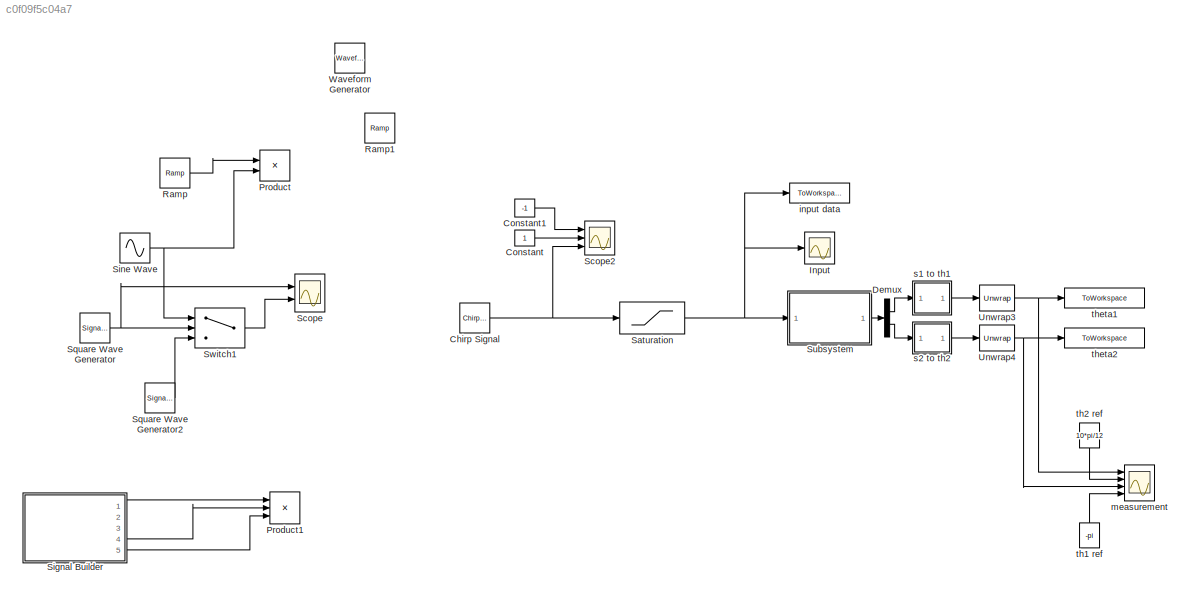
MODEL slx_c0f09f5c04a7
KIND model
CONFIG AbsTol = auto
CONFIG EnableMultiTasking = off
CONFIG FixedStep = auto
CONFIG MaxStep = auto
CONFIG MinStep = auto
CONFIG RelTol = 1e-3
CONFIG SampleTimeConstraint = Unconstrained
CONFIG SolverName = VariableStepAuto
CONFIG StartTime = 0.0
CONFIG StopTime = 3
BLOCK [Reference] Chirp Signal  REF=simulink/Sources/Chirp Signal
  Ports = [0, 1]
  SourceBlock = simulink/Sources/Chirp Signal
  SourceProductBaseCode = SL
  SourceType = chirp
BLOCK [Constant] Constant
BLOCK [Constant] Constant1
  Value = -1
BLOCK [Demux] Demux
  Outputs = 2
  Ports = [1, 2]
BLOCK [Scope] Input
  Floating = off
  NumInputPorts = 1
  Ports = [1]
  ScopeSpecificationString = Simulink.scopes.TimeScopeBlockCfg('CurrentConfiguration', extmgr.ConfigurationSet(extmgr.Configuration('Core','General UI',true),extmgr.Configuration('Core','Source UI',true),extmgr.Configuration('Sources','WiredSimulink',true,'DataLoggingVariableName','ScopeData3'),extmgr.Configuration('Visuals','Time Domain',true,'SerializedDisplays',{struct('MinYLimReal','-1.04705','MaxYLimReal','1.22745','YLab...<+1438ch>
BLOCK [Product] Product
  Commented = on
  Ports = [2, 1]
BLOCK [Product] Product1
  Commented = on
  Inputs = 3
  Ports = [3, 1]
BLOCK [Reference] Ramp  REF=simulink/Sources/Ramp
  Commented = on
  Ports = [0, 1]
  SourceBlock = simulink/Sources/Ramp
  SourceProductBaseCode = SL
  SourceType = Ramp
BLOCK [Reference] Ramp1  REF=simulink/Sources/Ramp
  Commented = on
  Ports = [0, 1]
  SourceBlock = simulink/Sources/Ramp
  SourceProductBaseCode = SL
  SourceType = Ramp
BLOCK [Saturate] Saturation
  LowerLimit = -1
  UpperLimit = 1
BLOCK [Scope] Scope
  Commented = on
  Floating = off
  NumInputPorts = 2
  Ports = [2]
  ScopeSpecificationString = Simulink.scopes.TimeScopeBlockCfg('CurrentConfiguration', extmgr.ConfigurationSet(extmgr.Configuration('Core','General UI',true),extmgr.Configuration('Core','Source UI',true),extmgr.Configuration('Sources','WiredSimulink',true,'DataLoggingVariableName','ScopeData4'),extmgr.Configuration('Visuals','Time Domain',true,'SerializedDisplays',{struct('MinYLimReal','-1.00000','MaxYLimReal','1.00000','YLab...<+1491ch>
BLOCK [Scope] Scope2
  Floating = off
  NumInputPorts = 3
  Ports = [3]
  ScopeSpecificationString = Simulink.scopes.TimeScopeBlockCfg('CurrentConfiguration', extmgr.ConfigurationSet(extmgr.Configuration('Core','General UI',true),extmgr.Configuration('Core','Source UI',true),extmgr.Configuration('Sources','WiredSimulink',true,'DataLoggingVariableName','ScopeData2'),extmgr.Configuration('Visuals','Time Domain',true,'SerializedDisplays',{struct('MinYLimReal','-1.25','MaxYLimReal','1.25','YLabelReal...<+1556ch>
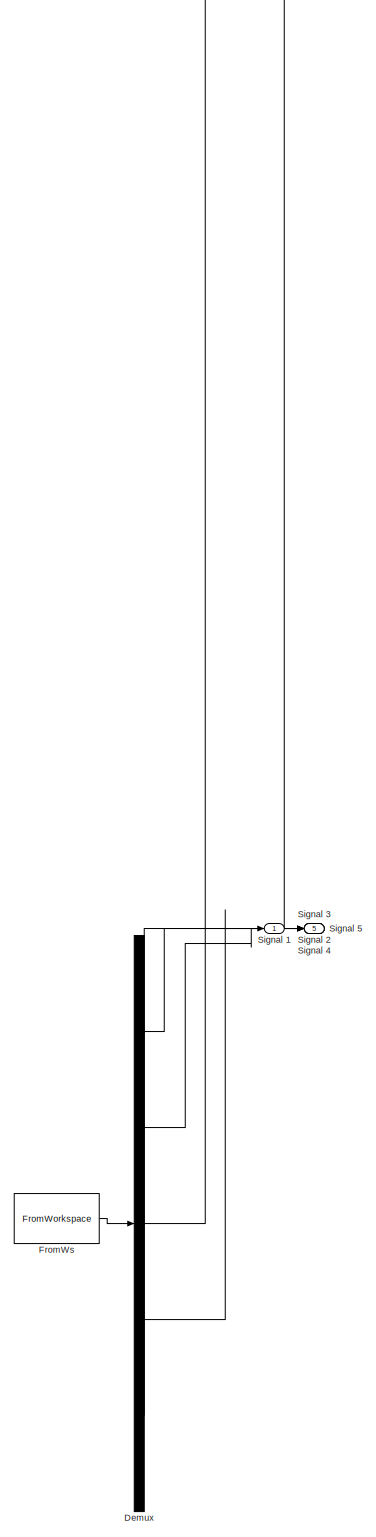
[diagram: Signal Builder - part 1/1, full width, bottom band]
BLOCK [SubSystem] Signal Builder
  ClipboardFcn = sigbuilder_block('clipboard');
  CloseFcn = sigbuilder_block('close');
  Commented = on
  ContinueFcn = sigbuilder_block('continue');
  CopyFcn = sigbuilder_block('copy');
  DeleteFcn = sigbuilder_block('delete');
  LoadFcn = sigbuilder_block('load');
  MaskHideContents = on
  ModelCloseFcn = sigbuilder_block('modelClose');
  NameChangeFcn = sigbuilder_block('namechange');
  OpenFcn = sigbuilder_block('open',[437.6 199.2 550.4 400 ]);
  PauseFcn = sigbuilder_block('pause');
  Ports = [0, 5]
  PreSaveFcn = sigbuilder_block('preSave');
  RequestExecContextInheritance = off
  StartFcn = sigbuilder_block('start');
  StopFcn = sigbuilder_block('stop');
  Tag = STV Subsys
BLOCK [Demux] Signal Builder/Demux
  DisplayOption = none
  Outputs = 5
  Ports = [1, 5]
  Tag = STV Demux
BLOCK [FromWorkspace] Signal Builder/FromWs
  Tag = STV FromWs
  VariableName = tuvar
BLOCK [Outport] Signal Builder/Signal 1
  Tag = STV Outport
BLOCK [Outport] Signal Builder/Signal 2
  Port = 2
  Tag = STV Outport
BLOCK [Outport] Signal Builder/Signal 3
  Port = 3
  Tag = STV Outport
BLOCK [Outport] Signal Builder/Signal 4
  Port = 4
  Tag = STV Outport
BLOCK [Outport] Signal Builder/Signal 5
  Port = 5
  Tag = STV Outport
BLOCK [Sin] Sine Wave
  Commented = on
  Frequency = 5
  Ports = [0, 1]
  SampleTime = 0
BLOCK [SignalGenerator] Square Wave Generator
  Commented = on
  Frequency = 2
  Ports = [0, 1]
  Units = rad/sec
  WaveForm = square
BLOCK [SignalGenerator] Square Wave Generator2
  Amplitude = 0.5
  Commented = on
  Frequency = 5
  Ports = [0, 1]
  Units = rad/sec
  WaveForm = square
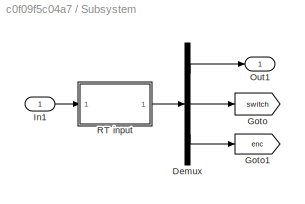
BLOCK [SubSystem] Subsystem
  Ports = [1, 1]
  RequestExecContextInheritance = off
BLOCK [Demux] Subsystem/Demux
  Outputs = [2 4 1]
  Ports = [1, 3]
BLOCK [Goto] Subsystem/Goto
  GotoTag = switch
  TagVisibility = global
BLOCK [Goto] Subsystem/Goto1
  GotoTag = enc
  TagVisibility = global
BLOCK [Inport] Subsystem/In1
BLOCK [Outport] Subsystem/Out1
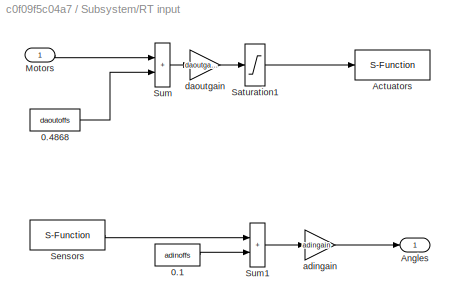
BLOCK [SubSystem] Subsystem/RT input
  Ports = [1, 1]
  RequestExecContextInheritance = off
BLOCK [Constant] Subsystem/RT input/0.1
  Value = adinoffs
BLOCK [Constant] Subsystem/RT input/0.4868
  Value = daoutoffs
BLOCK [S-Function] Subsystem/RT input/Actuators
  EnableBusSupport = off
  FunctionName = sfusbout
  Parameters = Ts, fugihandle
  Ports = [1]
  SFcnIsStateOwnerBlock = off
  SFunctionDeploymentMode = off
BLOCK [Outport] Subsystem/RT input/Angles
BLOCK [Inport] Subsystem/RT input/Motors
BLOCK [Saturate] Subsystem/RT input/Saturation1
  LowerLimit = -10
  UpperLimit = 10
BLOCK [S-Function] Subsystem/RT input/Sensors
  EnableBusSupport = off
  FunctionName = sfusbin
  Parameters = Ts, fugihandle, channels
  Ports = [0, 1]
  SFcnIsStateOwnerBlock = off
  SFunctionDeploymentMode = off
BLOCK [Sum] Subsystem/RT input/Sum
  IconShape = rectangular
  InputSameDT = on
  OutDataTypeStr = Inherit: Same as first input
  Ports = [2, 1]
  SaturateOnIntegerOverflow = on
BLOCK [Sum] Subsystem/RT input/Sum1
  IconShape = rectangular
  InputSameDT = on
  OutDataTypeStr = Inherit: Same as first input
  Ports = [2, 1]
  SaturateOnIntegerOverflow = on
BLOCK [Gain] Subsystem/RT input/adingain
  Gain = adingain
  OutDataTypeStr = Inherit: Same as input
  ParamDataTypeStr = Inherit: Same as input
  SaturateOnIntegerOverflow = on
BLOCK [Gain] Subsystem/RT input/daoutgain
  Gain = daoutgain
  OutDataTypeStr = Inherit: Same as input
  ParamDataTypeStr = Inherit: Same as input
  SaturateOnIntegerOverflow = on
BLOCK [Switch] Switch1
  Commented = on
  Criteria = u2 > Threshold
  InputSameDT = off
  SaturateOnIntegerOverflow = off
  Threshold = 0.5
BLOCK [Reference] Unwrap3  REF=dspsigops/Unwrap
  Ports = [1, 1]
  SourceBlock = dspsigops/Unwrap
  SourceProductBaseCode = DS
  SourceType = Unwrap
  UserDataPersistent = on
BLOCK [Reference] Unwrap4  REF=dspsigops/Unwrap
  Ports = [1, 1]
  SourceBlock = dspsigops/Unwrap
  SourceProductBaseCode = DS
  SourceType = Unwrap
  UserDataPersistent = on
BLOCK [Reference] Waveform Generator  REF=simulink/Sources/Waveform
Generator
  Commented = on
  Ports = [0, 1]
  SourceBlock = simulink/Sources/Waveform\nGenerator
  SourceProductBaseCode = SL
  SourceType = WaveformGenerator
BLOCK [ToWorkspace] input data
  FixptAsFi = on
  MaxDataPoints = inf
  Ports = [1]
  SampleTime = h
  SaveFormat = Timeseries
  VariableName = input_data
BLOCK [Scope] measurement
  Floating = off
  NumInputPorts = 4
  Ports = [4]
  ScopeSpecificationString = Simulink.scopes.TimeScopeBlockCfg('CurrentConfiguration', extmgr.ConfigurationSet(extmgr.Configuration('Core','General UI',true),extmgr.Configuration('Core','Source UI',true),extmgr.Configuration('Sources','WiredSimulink',true,'DataLoggingVariableName','ScopeData5','DataLoggingSaveFormat','StructureWithTime'),extmgr.Configuration('Visuals','Time Domain',true,'SerializedDisplays',{struct('MinYLimRe...<+1482ch>
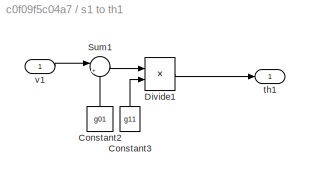
BLOCK [SubSystem] s1 to th1
  NameLocation = top
  Ports = [1, 1]
  RequestExecContextInheritance = off
BLOCK [Constant] s1 to th1/Constant2
  NameLocation = right
  Value = g01
BLOCK [Constant] s1 to th1/Constant3
  NameLocation = right
  Value = g11
BLOCK [Product] s1 to th1/Divide1
  Inputs = */
  Ports = [2, 1]
BLOCK [Sum] s1 to th1/Sum1
  Inputs = |+-
  Ports = [2, 1]
BLOCK [Outport] s1 to th1/th1
BLOCK [Inport] s1 to th1/v1
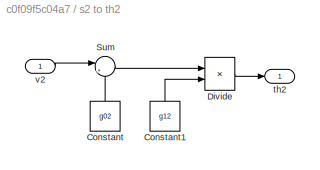
BLOCK [SubSystem] s2 to th2
  Ports = [1, 1]
  RequestExecContextInheritance = off
BLOCK [Constant] s2 to th2/Constant
  NameLocation = right
  Value = g02
BLOCK [Constant] s2 to th2/Constant1
  NameLocation = right
  Value = g12
BLOCK [Product] s2 to th2/Divide
  Inputs = */
  Ports = [2, 1]
BLOCK [Sum] s2 to th2/Sum
  Inputs = |+-
  NameLocation = top
  Ports = [2, 1]
BLOCK [Outport] s2 to th2/th2
BLOCK [Inport] s2 to th2/v2
BLOCK [Constant] th1 ref
  Commented = on
  NameLocation = right
  Value = -pi
BLOCK [Constant] th2 ref
  Commented = on
  NameLocation = right
  Value = 10*pi/12
BLOCK [ToWorkspace] theta1
  FixptAsFi = on
  MaxDataPoints = inf
  NameLocation = top
  Ports = [1]
  SampleTime = h
  SaveFormat = Timeseries
  VariableName = th1_data
BLOCK [ToWorkspace] theta2
  FixptAsFi = on
  MaxDataPoints = inf
  Ports = [1]
  SampleTime = h
  SaveFormat = Timeseries
  VariableName = th2_data
NET Chirp Signal:1 -> Saturation:1, Scope2:3
LINE Constant1:1 -> Scope2:1
LINE Constant:1 -> Scope2:2
LINE Demux:1 -> s1 to th1:1
LINE Demux:2 -> s2 to th2:1
LINE Ramp:1 -> Product:1
NET Saturation:1 -> Input:1, Subsystem:1, input data:1
LINE Signal Builder:1 -> Product1:1
LINE Signal Builder:4 -> Product1:2
LINE Signal Builder:5 -> Product1:3
NET Sine Wave:1 -> Product:2, Switch1:1
LINE Square Wave Generator2:1 -> Switch1:3
NET Square Wave Generator:1 -> Scope:1, Switch1:2
LINE Subsystem/Demux:1 -> Subsystem/Out1:1
LINE Subsystem/Demux:2 -> Subsystem/Goto:1
LINE Subsystem/Demux:3 -> Subsystem/Goto1:1
LINE Subsystem/In1:1 -> Subsystem/RT input:1
LINE Subsystem/RT input/0.1:1 -> Subsystem/RT input/Sum1:2
LINE Subsystem/RT input/0.4868:1 -> Subsystem/RT input/Sum:2
LINE Subsystem/RT input/Motors:1 -> Subsystem/RT input/Sum:1
LINE Subsystem/RT input/Saturation1:1 -> Subsystem/RT input/Actuators:1
LINE Subsystem/RT input/Sensors:1 -> Subsystem/RT input/Sum1:1
LINE Subsystem/RT input/Sum1:1 -> Subsystem/RT input/adingain:1
LINE Subsystem/RT input/Sum:1 -> Subsystem/RT input/daoutgain:1
LINE Subsystem/RT input/adingain:1 -> Subsystem/RT input/Angles:1
LINE Subsystem/RT input/daoutgain:1 -> Subsystem/RT input/Saturation1:1
LINE Subsystem/RT input:1 -> Subsystem/Demux:1
LINE Subsystem:1 -> Demux:1
LINE Switch1:1 -> Scope:2
NET Unwrap3:1 -> measurement:1, theta1:1
NET Unwrap4:1 -> measurement:3, theta2:1
LINE s1 to th1/Constant2:1 -> s1 to th1/Sum1:2
LINE s1 to th1/Constant3:1 -> s1 to th1/Divide1:2
LINE s1 to th1/Divide1:1 -> s1 to th1/th1:1
LINE s1 to th1/Sum1:1 -> s1 to th1/Divide1:1
LINE s1 to th1/v1:1 -> s1 to th1/Sum1:1
LINE s1 to th1:1 -> Unwrap3:1
LINE s2 to th2/Constant1:1 -> s2 to th2/Divide:2
LINE s2 to th2/Constant:1 -> s2 to th2/Sum:2
LINE s2 to th2/Divide:1 -> s2 to th2/th2:1
LINE s2 to th2/Sum:1 -> s2 to th2/Divide:1
LINE s2 to th2/v2:1 -> s2 to th2/Sum:1
LINE s2 to th2:1 -> Unwrap4:1
LINE th1 ref:1 -> measurement:4
LINE th2 ref:1 -> measurement:2
note: NET lines group one-source signal fan-out (src -> all destinations, sorted); 1:1 wires keep LINE
